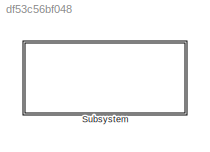
MODEL slx_df53c56bf048
KIND library
CONFIG AbsTol = auto
CONFIG FixedStep = auto
CONFIG MaxStep = auto
CONFIG MinStep = auto
CONFIG RelTol = 1e-3
CONFIG SampleTimeConstraint = Unconstrained
CONFIG Solver = ode45
CONFIG SolverMode = Auto
CONFIG SolverName = ode45
CONFIG StartTime = 0.0
CONFIG StopTime = 10.0
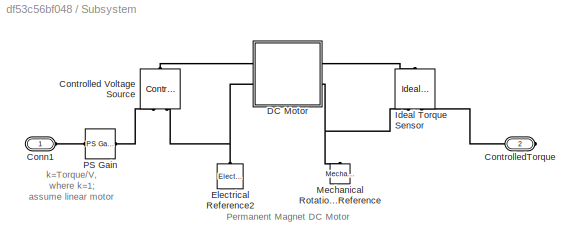
BLOCK [SubSystem] Subsystem
  Ports = [0, 0, 0, 0, 0, 1, 1]
  RequestExecContextInheritance = off
BLOCK [PMIOPort] Subsystem/Conn1
  Port = 1
  Side = Left
BLOCK [Reference] Subsystem/Controlled Voltage Source  REF=fl_lib/Electrical/Electrical Sources/Controlled Voltage
Source
  ClassName = controlled_voltage
  ComponentPath = foundation.electrical.sources.controlled_voltage
  ComponentVariantNames = controlled_voltage
  ComponentVariants = foundation.electrical.sources.controlled_voltage
  LogSimulationData = off
  Ports = [0, 0, 0, 0, 0, 1, 2]
  SchemaVersion = 1
  SourceBlock = fl_lib/Electrical/Electrical Sources/Controlled Voltage\nSource
  SourceFile = foundation.electrical.sources.controlled_voltage
  SourceType = Controlled Voltage\nSource
BLOCK [PMIOPort] Subsystem/ControlledTorque
  Port = 2
  Side = Right
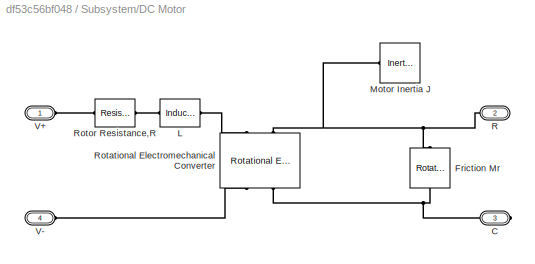
BLOCK [SubSystem] Subsystem/DC Motor
  Ports = [0, 0, 0, 0, 0, 2, 2]
  RequestExecContextInheritance = off
BLOCK [PMIOPort] Subsystem/DC Motor/C
  Port = 3
  Side = Right
BLOCK [Reference] Subsystem/DC Motor/Friction Mr  REF=fl_lib/Mechanical/Rotational Elements/Rotational Friction
  ClassName = friction_rot
  Col_trq = 0.02e-3
  Col_trq_unit = N*m
  ComponentPath = foundation.mechanical.rotational.friction
  ComponentVariantNames = friction
  ComponentVariants = foundation.mechanical.rotational.friction
  LogSimulationData = off
  Ports = [0, 0, 0, 0, 0, 1, 1]
  SchemaVersion = 1
  SourceBlock = fl_lib/Mechanical/Rotational Elements/Rotational Friction
  SourceFile = foundation.mechanical.rotational.friction
  SourceType = Rotational Friction
  brkwy_trq = 0.02e-3
  brkwy_trq_unit = N*m
  t = 0
  t_priority = High
  t_specify = off
  t_unit = N*m
  trans_coef = 10
  trans_coef_unit = s/rad
  vel_thr = 0.1
  vel_thr_unit = rad/s
  visc_coef = 0
  visc_coef_unit = N*m/(rad/s)
  w = 0
  w_priority = High
  w_specify = off
  w_unit = rad/s
BLOCK [Reference] Subsystem/DC Motor/L  REF=fl_lib/Electrical/Electrical Elements/Inductor
  ClassName = inductor
  ComponentPath = foundation.electrical.elements.inductor
  ComponentVariantNames = inductor
  ComponentVariants = foundation.electrical.elements.inductor
  LogSimulationData = off
  Ports = [0, 0, 0, 0, 0, 1, 1]
  SchemaVersion = 1
  SourceBlock = fl_lib/Electrical/Electrical Elements/Inductor
  SourceFile = foundation.electrical.elements.inductor
  SourceType = Inductor
  g = 1e-09
  g_unit = 1/Ohm
  i = 0
  i_L = 0
  i_L_priority = High
  i_L_specify = on
  i_L_unit = A
  i_priority = High
  i_specify = off
  i_unit = A
  l = 12e-6
  l_unit = H
  r = 0
  r_unit = Ohm
  v = 0
  v_priority = High
  v_specify = off
  v_unit = V
BLOCK [Reference] Subsystem/DC Motor/Motor Inertia J  REF=fl_lib/Mechanical/Rotational Elements/Inertia
  ClassName = inertia
  ComponentPath = foundation.mechanical.rotational.inertia
  ComponentVariantNames = inertia
  ComponentVariants = foundation.mechanical.rotational.inertia
  LogSimulationData = off
  Ports = [0, 0, 0, 0, 0, 1]
  SchemaVersion = 1
  SourceBlock = fl_lib/Mechanical/Rotational Elements/Inertia
  SourceFile = foundation.mechanical.rotational.inertia
  SourceType = Inertia
  inertia = 0.01
  inertia_unit = g*cm^2
  t = 0
  t_priority = High
  t_specify = off
  t_unit = N*m
  w = 0
  w_priority = High
  w_specify = on
  w_unit = rad/s
BLOCK [PMIOPort] Subsystem/DC Motor/R
  Port = 2
  Side = Right
BLOCK [Reference] Subsystem/DC Motor/Rotational Electromechanical Converter  REF=fl_lib/Electrical/Electrical Elements/Rotational
Electromechanical
Converter
  ClassName = rotational_converter
  ComponentPath = foundation.electrical.elements.rotational_converter
  ComponentVariantNames = rotational_converter
  ComponentVariants = foundation.electrical.elements.rotational_converter
  K = 0.072e-3*60/(2*pi)
  K_unit = s*V/rad
  LogSimulationData = off
  Ports = [0, 0, 0, 0, 0, 2, 2]
  SchemaVersion = 1
  SourceBlock = fl_lib/Electrical/Electrical Elements/Rotational\nElectromechanical\nConverter
  SourceFile = foundation.electrical.elements.rotational_converter
  SourceType = Rotational\nElectromechanical\nConverter
  i = 0
  i_priority = High
  i_specify = off
  i_unit = A
  t = 0
  t_priority = High
  t_specify = off
  t_unit = N*m
  v = 0
  v_priority = High
  v_specify = off
  v_unit = V
  w = 0
  w_priority = High
  w_specify = off
  w_unit = rad/s
BLOCK [Reference] Subsystem/DC Motor/Rotor Resistance,R  REF=fl_lib/Electrical/Electrical Elements/Resistor
  ClassName = resistor
  ComponentPath = foundation.electrical.elements.resistor
  ComponentVariantNames = resistor
  ComponentVariants = foundation.electrical.elements.resistor
  LogSimulationData = off
  Ports = [0, 0, 0, 0, 0, 1, 1]
  R = 3.9
  R_unit = Ohm
  SchemaVersion = 1
  SourceBlock = fl_lib/Electrical/Electrical Elements/Resistor
  SourceFile = foundation.electrical.elements.resistor
  SourceType = Resistor
  Tag = Factory Generic
  i = 0
  i_priority = High
  i_specify = off
  i_unit = A
  v = 0
  v_priority = High
  v_specify = off
  v_unit = V
BLOCK [PMIOPort] Subsystem/DC Motor/V+
  Port = 1
  Side = Left
BLOCK [PMIOPort] Subsystem/DC Motor/V-
  Port = 4
  Side = Left
BLOCK [Reference] Subsystem/Electrical Reference2  REF=fl_lib/Electrical/Electrical Elements/Electrical Reference
  ClassName = reference_electrical
  ComponentPath = foundation.electrical.elements.reference
  ComponentVariantNames = reference
  ComponentVariants = foundation.electrical.elements.reference
  LogSimulationData = off
  Ports = [0, 0, 0, 0, 0, 1]
  SchemaVersion = 1
  SourceBlock = fl_lib/Electrical/Electrical Elements/Electrical Reference
  SourceFile = foundation.electrical.elements.reference
  SourceType = Electrical Reference
BLOCK [Reference] Subsystem/Ideal Torque Sensor  REF=fl_lib/Mechanical/Mechanical Sensors/Ideal Torque Sensor
  ClassName = torque
  ComponentPath = foundation.mechanical.sensors.torque
  ComponentVariantNames = torque
  ComponentVariants = foundation.mechanical.sensors.torque
  LogSimulationData = off
  Ports = [0, 0, 0, 0, 0, 1, 2]
  SchemaVersion = 1
  SourceBlock = fl_lib/Mechanical/Mechanical Sensors/Ideal Torque Sensor
  SourceFile = foundation.mechanical.sensors.torque
  SourceType = Ideal Torque Sensor
BLOCK [Reference] Subsystem/Mechanical Rotational Reference  REF=fl_lib/Mechanical/Rotational Elements/Mechanical
Rotational Reference
  ClassName = reference_rot
  ComponentPath = foundation.mechanical.rotational.reference
  ComponentVariantNames = reference
  ComponentVariants = foundation.mechanical.rotational.reference
  LogSimulationData = off
  Ports = [0, 0, 0, 0, 0, 1]
  SchemaVersion = 1
  SourceBlock = fl_lib/Mechanical/Rotational Elements/Mechanical\nRotational Reference
  SourceFile = foundation.mechanical.rotational.reference
  SourceType = Mechanical\nRotational Reference
BLOCK [Reference] Subsystem/PS Gain  REF=fl_lib/Physical Signals/Functions/PS Gain
  ClassName = gain
  ComponentPath = foundation.physical_signal.functions.gain
  ComponentVariantNames = gain
  ComponentVariants = foundation.physical_signal.functions.gain
  LogSimulationData = off
  Ports = [0, 0, 0, 0, 0, 1, 1]
  SchemaVersion = 1
  SourceBlock = fl_lib/Physical Signals/Functions/PS Gain
  SourceFile = foundation.physical_signal.functions.gain
  SourceType = PS Gain
  gain = 5.67
  gain_unit = 1
ANNOTATION Subsystem: Permanent Magnet DC Motor
ANNOTATION Subsystem: k=Torque/V, where k=1; assume linear motor
PLINE Subsystem/Conn1:RConn1 -- Subsystem/PS Gain:LConn1
PLINE Subsystem/Controlled Voltage Source:LConn1 -- Subsystem/DC Motor:LConn1
PLINE Subsystem/Controlled Voltage Source:RConn1 -- Subsystem/PS Gain:RConn1
PNET net1: Subsystem/Controlled Voltage Source:RConn2 -- Subsystem/DC Motor:LConn2 -- Subsystem/Electrical Reference2:LConn1
PLINE Subsystem/ControlledTorque:RConn1 -- Subsystem/Ideal Torque Sensor:RConn2
PNET net2: Subsystem/DC Motor/C:RConn1 -- Subsystem/DC Motor/Friction Mr:RConn1 -- Subsystem/DC Motor/Rotational Electromechanical Converter:RConn2
PNET net3: Subsystem/DC Motor/Friction Mr:LConn1 -- Subsystem/DC Motor/Motor Inertia J:LConn1 -- Subsystem/DC Motor/R:RConn1 -- Subsystem/DC Motor/Rotational Electromechanical Converter:LConn2
PLINE Subsystem/DC Motor/L:LConn1 -- Subsystem/DC Motor/Rotor Resistance,R:RConn1
PLINE Subsystem/DC Motor/L:RConn1 -- Subsystem/DC Motor/Rotational Electromechanical Converter:LConn1
PLINE Subsystem/DC Motor/Rotational Electromechanical Converter:RConn1 -- Subsystem/DC Motor/V-:RConn1
PLINE Subsystem/DC Motor/Rotor Resistance,R:LConn1 -- Subsystem/DC Motor/V+:RConn1
PLINE Subsystem/DC Motor:RConn1 -- Subsystem/Ideal Torque Sensor:LConn1
PNET net4: Subsystem/DC Motor:RConn2 -- Subsystem/Ideal Torque Sensor:RConn1 -- Subsystem/Mechanical Rotational Reference:LConn1
note: PNET lines group multi-terminal physical nets as a canonical sorted terminal list (undirected conserving connections); 2-terminal nets keep the pairwise PLINE form
